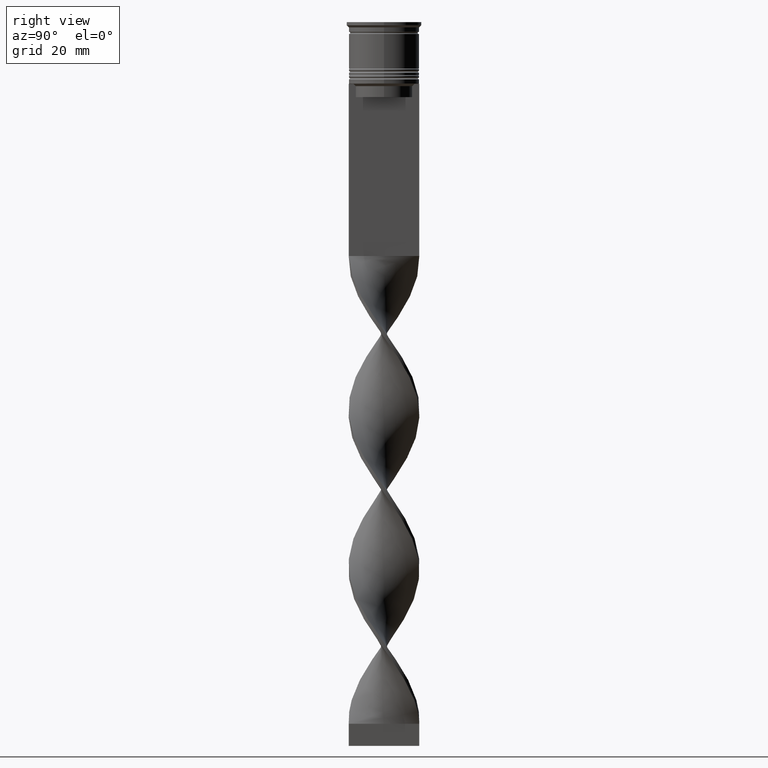
[diagram: clean part render]
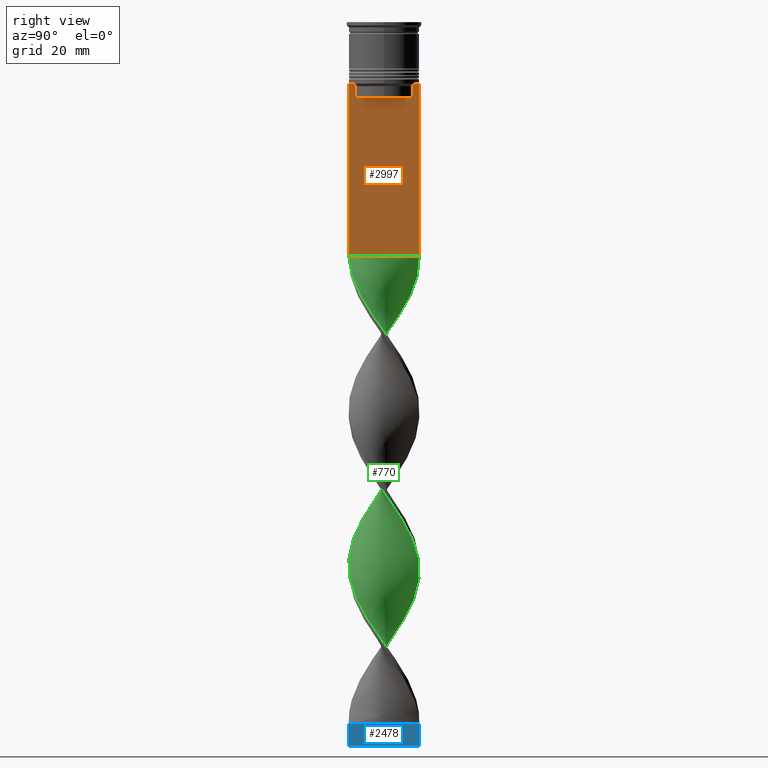
[diagram: same view with three faces highlighted in distinct colors, each labeled with its STEP entity id]
A machine part, right view with three faces highlighted in distinct colors.
Their STEP definitions:

[orange] entity #2997 — the highlighted planar face has unit normal (-1, 0, 0).
#14 = EDGE_CURVE ( 'NONE', #557, #58, #1973, .T. ) ;
#44 = VERTEX_POINT ( 'NONE', #2589 ) ;
#58 = VERTEX_POINT ( 'NONE', #646 ) ;
#73 = VERTEX_POINT ( 'NONE', #959 ) ;
#84 = VECTOR ( 'NONE', #784, 1000.000000000000000 ) ;
#130 = CARTESIAN_POINT ( 'NONE',  ( 0.5000000000000001110, 6.399999999999999467, -17.00000000000000000 ) ) ;
#134 = VERTEX_POINT ( 'NONE', #907 ) ;
#162 = CARTESIAN_POINT ( 'NONE',  ( 0.5000000000000001110, 7.999999999999996447, -14.00000000000000178 ) ) ;
#192 = LINE ( 'NONE', #1950, #892 ) ;
#210 = ORIENTED_EDGE ( 'NONE', *, *, #867, .T. ) ;
#214 = VECTOR ( 'NONE', #735, 1000.000000000000000 ) ;
#252 = DIRECTION ( 'NONE',  ( 0.000000000000000000, 0.000000000000000000, -1.000000000000000000 ) ) ;
#345 = CARTESIAN_POINT ( 'NONE',  ( 0.5000000000000001110, -6.380438856379708312, -14.50000000000000000 ) ) ;
#395 = CARTESIAN_POINT ( 'NONE',  ( 0.5000000000000001110, -6.380438856379708312, 0.000000000000000000 ) ) ;
#422 = LINE ( 'NONE', #130, #3164 ) ;
#461 = CARTESIAN_POINT ( 'NONE',  ( 0.5000000000000001110, 7.884161337770806632, -14.00000000000000178 ) ) ;
#551 = CARTESIAN_POINT ( 'NONE',  ( 0.5000000000000001110, -8.000000000000003553, -53.00000000000000000 ) ) ;
#555 = EDGE_CURVE ( 'NONE', #58, #44, #3537, .T. ) ;
#557 = VERTEX_POINT ( 'NONE', #461 ) ;
#577 = EDGE_CURVE ( 'NONE', #2911, #1686, #422, .T. ) ;
#592 = DIRECTION ( 'NONE',  ( 0.000000000000000000, -1.000000000000000000, 0.000000000000000000 ) ) ;
#598 = DIRECTION ( 'NONE',  ( 0.000000000000000000, 0.000000000000000000, -1.000000000000000000 ) ) ;
#646 = CARTESIAN_POINT ( 'NONE',  ( 0.5000000000000001110, 6.881860213634098500, -14.00000000000000178 ) ) ;
#735 = DIRECTION ( 'NONE',  ( 0.000000000000000000, 0.000000000000000000, -1.000000000000000000 ) ) ;
#751 = VECTOR ( 'NONE', #592, 1000.000000000000000 ) ;
#784 = DIRECTION ( 'NONE',  ( 0.000000000000000000, -1.000000000000000000, 0.000000000000000000 ) ) ;
#792 = DIRECTION ( 'NONE',  ( 0.000000000000000000, -1.000000000000000000, 0.000000000000000000 ) ) ;
#795 = LINE ( 'NONE', #551, #2498 ) ;
#812 = ORIENTED_EDGE ( 'NONE', *, *, #3705, .T. ) ;
#867 = EDGE_CURVE ( 'NONE', #73, #2704, #795, .T. ) ;
#890 = ORIENTED_EDGE ( 'NONE', *, *, #14, .T. ) ;
#892 = VECTOR ( 'NONE', #252, 1000.000000000000000 ) ;
#907 = CARTESIAN_POINT ( 'NONE',  ( 0.5000000000000001110, -8.000000000000003553, -14.00000000000000178 ) ) ;
#934 = ORIENTED_EDGE ( 'NONE', *, *, #2604, .T. ) ;
#935 = LINE ( 'NONE', #2056, #3174 ) ;
#959 = CARTESIAN_POINT ( 'NONE',  ( 0.5000000000000001110, -8.000000000000003553, -53.00000000000000000 ) ) ;
#1014 = B_SPLINE_CURVE_WITH_KNOTS ( 'NONE', 3,
 ( #345, #1999, #3165, #3514 ),
 .UNSPECIFIED., .F., .F.,
 ( 4, 4 ),
 ( 0.02996184199614751464, 0.03067452609193705923 ),
 .UNSPECIFIED. ) ;
#1022 = ORIENTED_EDGE ( 'NONE', *, *, #1926, .F. ) ;
#1120 = CARTESIAN_POINT ( 'NONE',  ( 0.5000000000000001110, -8.000000000000003553, -14.00000000000000178 ) ) ;
#1130 = VERTEX_POINT ( 'NONE', #2490 ) ;
#1160 = LINE ( 'NONE', #3308, #2327 ) ;
#1194 = VECTOR ( 'NONE', #1563, 1000.000000000000000 ) ;
#1226 = CARTESIAN_POINT ( 'NONE',  ( 0.5000000000000001110, -6.380438856379708312, -17.00000000000000000 ) ) ;
#1266 = ORIENTED_EDGE ( 'NONE', *, *, #1529, .T. ) ;
#1328 = CARTESIAN_POINT ( 'NONE',  ( 0.5000000000000001110, 6.380438856379708312, -17.00000000000000000 ) ) ;
#1329 = CARTESIAN_POINT ( 'NONE',  ( 0.5000000000000001110, 6.881860213634098500, -14.00000000000000178 ) ) ;
#1357 = ORIENTED_EDGE ( 'NONE', *, *, #2851, .T. ) ;
#1482 = EDGE_CURVE ( 'NONE', #44, #2911, #192, .T. ) ;
#1490 = CARTESIAN_POINT ( 'NONE',  ( 0.5000000000000001110, 7.999999999999996447, 2.031219541881394530 ) ) ;
#1529 = EDGE_CURVE ( 'NONE', #2229, #1130, #3709, .T. ) ;
#1563 = DIRECTION ( 'NONE',  ( -0.000000000000000000, -0.000000000000000000, 1.000000000000000000 ) ) ;
#1603 = DIRECTION ( 'NONE',  ( 0.000000000000000000, -1.000000000000000000, 0.000000000000000000 ) ) ;
#1613 = CARTESIAN_POINT ( 'NONE',  ( 0.5000000000000001110, -6.881860213634098500, -14.00000000000000178 ) ) ;
#1620 = CARTESIAN_POINT ( 'NONE',  ( 0.5000000000000001110, -6.380438856379708312, -14.50000000000000000 ) ) ;
#1638 = FACE_OUTER_BOUND ( 'NONE', #2395, .T. ) ;
#1645 = EDGE_CURVE ( 'NONE', #3159, #2229, #1014, .T. ) ;
#1686 = VERTEX_POINT ( 'NONE', #1226 ) ;
#1694 = DIRECTION ( 'NONE',  ( 0.000000000000000000, 1.000000000000000000, 0.000000000000000000 ) ) ;
#1740 = ORIENTED_EDGE ( 'NONE', *, *, #577, .T. ) ;
#1769 = LINE ( 'NONE', #1490, #3483 ) ;
#1842 = LINE ( 'NONE', #395, #1194 ) ;
#1926 = EDGE_CURVE ( 'NONE', #2160, #2704, #1769, .T. ) ;
#1950 = CARTESIAN_POINT ( 'NONE',  ( 0.5000000000000001110, 6.380438856379708312, 0.000000000000000000 ) ) ;
#1973 = LINE ( 'NONE', #3118, #751 ) ;
#1999 = CARTESIAN_POINT ( 'NONE',  ( 0.5000000000000001110, -6.547597841511247019, -14.33335192438652150 ) ) ;
#2056 = CARTESIAN_POINT ( 'NONE',  ( 0.5000000000000001110, -8.000000000000003553, -14.00000000000000178 ) ) ;
#2142 = LINE ( 'NONE', #3313, #214 ) ;
#2160 = VERTEX_POINT ( 'NONE', #162 ) ;
#2229 = VERTEX_POINT ( 'NONE', #1613 ) ;
#2236 = ORIENTED_EDGE ( 'NONE', *, *, #2251, .T. ) ;
#2251 = EDGE_CURVE ( 'NONE', #1686, #3159, #1842, .T. ) ;
#2327 = VECTOR ( 'NONE', #792, 1000.000000000000000 ) ;
#2395 = EDGE_LOOP ( 'NONE', ( #890, #2635, #3632, #1740, #2236, #2908, #1266, #934, #1357, #210, #1022, #812 ) ) ;
#2477 = PLANE ( 'NONE',  #2990 ) ;
#2490 = CARTESIAN_POINT ( 'NONE',  ( 0.5000000000000001110, -7.884161337770806632, -14.00000000000000178 ) ) ;
#2498 = VECTOR ( 'NONE', #1694, 1000.000000000000000 ) ;
#2517 = CARTESIAN_POINT ( 'NONE',  ( 0.5000000000000001110, -8.000000000000003553, 2.031219541881394530 ) ) ;
#2589 = CARTESIAN_POINT ( 'NONE',  ( 0.5000000000000001110, 6.380438856379708312, -14.50000000000000000 ) ) ;
#2604 = EDGE_CURVE ( 'NONE', #1130, #134, #935, .T. ) ;
#2616 = DIRECTION ( 'NONE',  ( 0.000000000000000000, -1.000000000000000000, 0.000000000000000000 ) ) ;
#2635 = ORIENTED_EDGE ( 'NONE', *, *, #555, .T. ) ;
#2704 = VERTEX_POINT ( 'NONE', #2860 ) ;
#2851 = EDGE_CURVE ( 'NONE', #134, #73, #2142, .T. ) ;
#2860 = CARTESIAN_POINT ( 'NONE',  ( 0.5000000000000001110, 7.999999999999996447, -53.00000000000000000 ) ) ;
#2908 = ORIENTED_EDGE ( 'NONE', *, *, #1645, .T. ) ;
#2911 = VERTEX_POINT ( 'NONE', #1328 ) ;
#2990 = AXIS2_PLACEMENT_3D ( 'NONE', #2517, #3123, #3643 ) ;
#2997 = ADVANCED_FACE ( 'NONE', ( #1638 ), #2477, .F. ) ;
#3011 = CARTESIAN_POINT ( 'NONE',  ( 0.5000000000000001110, 6.547597841304911626, -14.33335192459222718 ) ) ;
#3027 = CARTESIAN_POINT ( 'NONE',  ( 0.5000000000000001110, 6.380438856379708312, -14.50000000000000000 ) ) ;
#3118 = CARTESIAN_POINT ( 'NONE',  ( 0.5000000000000001110, -8.000000000000003553, -14.00000000000000178 ) ) ;
#3123 = DIRECTION ( 'NONE',  ( -1.000000000000000000, 0.000000000000000000, 0.000000000000000000 ) ) ;
#3159 = VERTEX_POINT ( 'NONE', #1620 ) ;
#3164 = VECTOR ( 'NONE', #1603, 1000.000000000000000 ) ;
#3165 = CARTESIAN_POINT ( 'NONE',  ( 0.5000000000000001110, -6.714736947305993908, -14.16668390685738821 ) ) ;
#3174 = VECTOR ( 'NONE', #2616, 1000.000000000000000 ) ;
#3308 = CARTESIAN_POINT ( 'NONE',  ( 0.5000000000000001110, -8.000000000000003553, -14.00000000000000178 ) ) ;
#3313 = CARTESIAN_POINT ( 'NONE',  ( 0.5000000000000001110, -8.000000000000003553, 2.031219541881394530 ) ) ;
#3483 = VECTOR ( 'NONE', #598, 1000.000000000000000 ) ;
#3514 = CARTESIAN_POINT ( 'NONE',  ( 0.5000000000000001110, -6.881860213634098500, -14.00000000000000178 ) ) ;
#3537 = B_SPLINE_CURVE_WITH_KNOTS ( 'NONE', 3,
 ( #1329, #3626, #3011, #3027 ),
 .UNSPECIFIED., .F., .F.,
 ( 4, 4 ),
 ( 0.01172465562756038263, 0.01243276816391822651 ),
 .UNSPECIFIED. ) ;
#3626 = CARTESIAN_POINT ( 'NONE',  ( 0.5000000000000001110, 6.714736947114692711, -14.16668390704818847 ) ) ;
#3632 = ORIENTED_EDGE ( 'NONE', *, *, #1482, .T. ) ;
#3643 = DIRECTION ( 'NONE',  ( 0.000000000000000000, 0.000000000000000000, 1.000000000000000000 ) ) ;
#3705 = EDGE_CURVE ( 'NONE', #2160, #557, #1160, .T. ) ;
#3709 = LINE ( 'NONE', #1120, #84 ) ;

[blue] entity #2478 — the highlighted planar face has unit normal (-1, 0, 0).
#91 = CARTESIAN_POINT ( 'NONE',  ( 0.5000000000000002220, 2.666666666666670515, -159.0000000000000000 ) ) ;
#108 = CARTESIAN_POINT ( 'NONE',  ( 0.4999999999999989453, -7.999999999999996447, -159.0000000000000000 ) ) ;
#120 = LINE ( 'NONE', #1317, #1071 ) ;
#147 = CARTESIAN_POINT ( 'NONE',  ( 0.5000000000000008882, 8.000000000000003553, -164.0000000000000000 ) ) ;
#160 = CARTESIAN_POINT ( 'NONE',  ( 0.4999999999999989453, -7.999999999999996447, -164.0000000000000000 ) ) ;
#301 = CARTESIAN_POINT ( 'NONE',  ( 0.5000000000000008882, 8.000000000000003553, -159.0000000000000000 ) ) ;
#340 = EDGE_CURVE ( 'NONE', #2500, #2428, #788, .T. ) ;
#493 = DIRECTION ( 'NONE',  ( -1.219727444046192488E-16, -1.000000000000000000, 0.000000000000000000 ) ) ;
#525 = ORIENTED_EDGE ( 'NONE', *, *, #340, .F. ) ;
#526 = CARTESIAN_POINT ( 'NONE',  ( 0.4999999999999989453, -7.999999999999996447, -159.0000000000000000 ) ) ;
#788 = LINE ( 'NONE', #160, #1005 ) ;
#830 = VECTOR ( 'NONE', #493, 1000.000000000000000 ) ;
#853 = EDGE_CURVE ( 'NONE', #3068, #2500, #1096, .T. ) ;
#1005 = VECTOR ( 'NONE', #1877, 1000.000000000000000 ) ;
#1032 = ORIENTED_EDGE ( 'NONE', *, *, #853, .F. ) ;
#1071 = VECTOR ( 'NONE', #3003, 1000.000000000000000 ) ;
#1096 = LINE ( 'NONE', #3140, #830 ) ;
#1317 = CARTESIAN_POINT ( 'NONE',  ( 0.5000000000000008882, 8.000000000000003553, -164.0000000000000000 ) ) ;
#1367 = DIRECTION ( 'NONE',  ( -1.000000000000000000, 1.219727444046192488E-16, 0.000000000000000000 ) ) ;
#1855 = AXIS2_PLACEMENT_3D ( 'NONE', #3711, #1367, #3361 ) ;
#1877 = DIRECTION ( 'NONE',  ( -0.000000000000000000, -0.000000000000000000, 1.000000000000000000 ) ) ;
#1951 = VERTEX_POINT ( 'NONE', #301 ) ;
#2001 = CARTESIAN_POINT ( 'NONE',  ( 0.4999999999999989453, -7.999999999999996447, -164.0000000000000000 ) ) ;
#2106 = ORIENTED_EDGE ( 'NONE', *, *, #2116, .T. ) ;
#2116 = EDGE_CURVE ( 'NONE', #3068, #1951, #120, .T. ) ;
#2191 = EDGE_LOOP ( 'NONE', ( #3451, #525, #1032, #2106 ) ) ;
#2277 = PLANE ( 'NONE',  #1855 ) ;
#2328 = B_SPLINE_CURVE_WITH_KNOTS ( 'NONE', 3,
 ( #3252, #91, #3004, #108 ),
 .UNSPECIFIED., .F., .F.,
 ( 4, 4 ),
 ( 0.000000000000000000, 1.000000000000000000 ),
 .UNSPECIFIED. ) ;
#2428 = VERTEX_POINT ( 'NONE', #526 ) ;
#2478 = ADVANCED_FACE ( 'NONE', ( #2768 ), #2277, .F. ) ;
#2500 = VERTEX_POINT ( 'NONE', #2001 ) ;
#2768 = FACE_OUTER_BOUND ( 'NONE', #2191, .T. ) ;
#3003 = DIRECTION ( 'NONE',  ( -0.000000000000000000, -0.000000000000000000, 1.000000000000000000 ) ) ;
#3004 = CARTESIAN_POINT ( 'NONE',  ( 0.4999999999999995559, -2.666666666666663410, -159.0000000000000000 ) ) ;
#3068 = VERTEX_POINT ( 'NONE', #147 ) ;
#3140 = CARTESIAN_POINT ( 'NONE',  ( 0.5000000000000008882, 8.000000000000003553, -164.0000000000000000 ) ) ;
#3252 = CARTESIAN_POINT ( 'NONE',  ( 0.5000000000000008882, 8.000000000000003553, -159.0000000000000000 ) ) ;
#3361 = DIRECTION ( 'NONE',  ( -1.219727444046192488E-16, -1.000000000000000000, 0.000000000000000000 ) ) ;
#3427 = EDGE_CURVE ( 'NONE', #1951, #2428, #2328, .T. ) ;
#3451 = ORIENTED_EDGE ( 'NONE', *, *, #3427, .T. ) ;
#3711 = CARTESIAN_POINT ( 'NONE',  ( 0.5000000000000008882, 8.000000000000003553, -164.0000000000000000 ) ) ;

[green] entity #770 — the highlighted face is a freeform B-spline surface patch.
#4 = CARTESIAN_POINT ( 'NONE',  ( 6.212274820320101476, 5.134920145359098242, -148.4000000000000057 ) ) ;
#5 = CARTESIAN_POINT ( 'NONE',  ( 6.803297758105513182, -4.321446859207498825, -63.60000000000000142 ) ) ;
#10 = CARTESIAN_POINT ( 'NONE',  ( -7.144131640230917846, 3.731105258425341020, -65.95555555555556282 ) ) ;
#24 = CARTESIAN_POINT ( 'NONE',  ( 7.763755626116592090, 2.164223167868970066, -73.02222222222221149 ) ) ;
#47 = CARTESIAN_POINT ( 'NONE',  ( 7.144131640230924951, 3.731105258425341464, -146.0444444444443945 ) ) ;
#48 = CARTESIAN_POINT ( 'NONE',  ( 5.610593300639729719, 5.724617263609562912, -78.91111111111111143 ) ) ;
#56 = CARTESIAN_POINT ( 'NONE',  ( 5.106790515527261043, -6.178243328853345595, -60.06666666666666288 ) ) ;
#59 = CARTESIAN_POINT ( 'NONE',  ( -7.763755626116593866, -2.164223167868965625, -108.3555555555555543 ) ) ;
#63 = CARTESIAN_POINT ( 'NONE',  ( 7.553108702445512357, -2.812527737008067241, -136.6222222222222342 ) ) ;
#71 = CARTESIAN_POINT ( 'NONE',  ( 6.279723906998584404, -4.981472438132170666, -62.42222222222221717 ) ) ;
#73 = VERTEX_POINT ( 'NONE', #959 ) ;
#75 = CARTESIAN_POINT ( 'NONE',  ( -7.553108702445507028, -2.812527737008061912, -146.0444444444443945 ) ) ;
#77 = CARTESIAN_POINT ( 'NONE',  ( 6.279723906998584404, -4.981472438132170666, -133.0888888888889028 ) ) ;
#79 = CARTESIAN_POINT ( 'NONE',  ( 2.007605570224929803, -7.805721184925809020, -91.86666666666666003 ) ) ;
#85 = CARTESIAN_POINT ( 'NONE',  ( -8.044066236508127687, 0.5027541397817588686, -141.3333333333333428 ) ) ;
#96 = CARTESIAN_POINT ( 'NONE',  ( 6.803297758105513182, -4.321446859207498825, -134.2666666666666515 ) ) ;
#100 = CARTESIAN_POINT ( 'NONE',  ( -7.553108702445506140, -2.812527737008062356, -75.37777777777777999 ) ) ;
#112 = CARTESIAN_POINT ( 'NONE',  ( 4.297773521152314480, 6.766028581145818066, -151.9333333333333371 ) ) ;
#116 = CARTESIAN_POINT ( 'NONE',  ( 1.174219726175168788, -7.929136651279321768, -90.68888888888888289 ) ) ;
#122 = CARTESIAN_POINT ( 'NONE',  ( 6.803297758105512294, -4.321446859207498825, -63.60000000000000853 ) ) ;
#132 = CARTESIAN_POINT ( 'NONE',  ( -5.756150055891655626, -5.641498017056837178, -80.08888888888888857 ) ) ;
#145 = CARTESIAN_POINT ( 'NONE',  ( -8.044066236508127687, 0.5027541397817588686, -141.3333333333333428 ) ) ;
#154 = CARTESIAN_POINT ( 'NONE',  ( 0.5000000000000001110, 7.999999999999996447, -123.6666666666666714 ) ) ;
#156 = CARTESIAN_POINT ( 'NONE',  ( -6.212274820320102364, -5.134920145359098242, -113.0666666666666487 ) ) ;
#157 = CARTESIAN_POINT ( 'NONE',  ( -7.903910931312356780, 1.333488653825365855, -69.48888888888889426 ) ) ;
#174 = CARTESIAN_POINT ( 'NONE',  ( -7.903910931312356780, 1.333488653825365855, -69.48888888888889426 ) ) ;
#179 = CARTESIAN_POINT ( 'NONE',  ( 7.178203230275508773, 3.566987298107773263, -111.8888888888888999 ) ) ;
#191 = CARTESIAN_POINT ( 'NONE',  ( -3.586635261345274994, -7.217742780431604110, -117.7777777777777999 ) ) ;
#233 = CARTESIAN_POINT ( 'NONE',  ( -1.340833882125413545, -7.947447882367156602, -157.8222222222221944 ) ) ;
#235 = CARTESIAN_POINT ( 'NONE',  ( -4.457430975162861131, 6.714988640649850460, -94.22222222222221433 ) ) ;
#250 = CARTESIAN_POINT ( 'NONE',  ( 7.763755626116592090, 2.164223167868970066, -143.6888888888888971 ) ) ;
#253 = EDGE_LOOP ( 'NONE', ( #2055, #3511, #968, #584 ) ) ;
#288 = CARTESIAN_POINT ( 'NONE',  ( -5.756150055891657402, 5.641498017056845171, -96.57777777777776862 ) ) ;
#295 = CARTESIAN_POINT ( 'NONE',  ( -3.586635261345268333, 7.217742780431601446, -58.88888888888888573 ) ) ;
#305 = CARTESIAN_POINT ( 'NONE',  ( 7.762960627548705084, -1.996607696852003677, -67.13333333333333997 ) ) ;
#323 = CARTESIAN_POINT ( 'NONE',  ( 8.044066236508134793, 0.5027541397817577584, -70.66666666666667140 ) ) ;
#338 = CARTESIAN_POINT ( 'NONE',  ( 2.963900771692544289, -7.495002038555971247, -56.53333333333331723 ) ) ;
#342 = CARTESIAN_POINT ( 'NONE',  ( 7.972812552651896922, -1.180687656695942334, -138.9777777777777885 ) ) ;
#354 = CARTESIAN_POINT ( 'NONE',  ( 7.178203230275512325, -3.566987298107783477, -135.4444444444444571 ) ) ;
#362 = CARTESIAN_POINT ( 'NONE',  ( -6.803297758105512294, 4.321446859207499713, -98.93333333333332291 ) ) ;
#367 = CARTESIAN_POINT ( 'NONE',  ( 1.340833882125412213, -7.947447882367162819, -124.8444444444444343 ) ) ;
#368 = CARTESIAN_POINT ( 'NONE',  ( -7.144131640230917846, 3.731105258425341020, -136.6222222222222342 ) ) ;
#369 = CARTESIAN_POINT ( 'NONE',  ( 5.610593300639729719, 5.724617263609562912, -78.91111111111111143 ) ) ;
#379 = CARTESIAN_POINT ( 'NONE',  ( -7.144131640230925839, -3.731105258425339688, -110.7111111111111086 ) ) ;
#381 = CARTESIAN_POINT ( 'NONE',  ( -5.756150055891655626, -5.641498017056837178, -80.08888888888890278 ) ) ;
#388 = CARTESIAN_POINT ( 'NONE',  ( -4.457430975162862019, -6.714988640649840690, -82.44444444444444287 ) ) ;
#400 = CARTESIAN_POINT ( 'NONE',  ( 6.678203230275513214, 4.433012701892219631, -147.2222222222222285 ) ) ;
#402 = CARTESIAN_POINT ( 'NONE',  ( -1.340833882125413545, -7.947447882367156602, -87.15555555555553724 ) ) ;
#405 = CARTESIAN_POINT ( 'NONE',  ( -7.453943633173751415, 2.947664213147155543, -137.8000000000000114 ) ) ;
#416 = CARTESIAN_POINT ( 'NONE',  ( -7.762960627548699755, -1.996607696852000569, -144.8666666666666742 ) ) ;
#418 =( BOUNDED_CURVE ( )  B_SPLINE_CURVE ( 2, ( #2290, #2910, #3187, #636, #3149, #2893, #3457, #2305, #604, #5, #1772, #561, #305, #2614, #933, #323, #2638, #24, #1460, #2857, #1173, #876, #48, #2068, #2935, #1195, #3217, #1793, #1739, #2329, #3500, #3440, #2560, #2880, #3727, #1139, #1445, #288, #2275, #362, #2407, #990, #2388, #1548, #1568, #1871, #2139, #3606, #2689, #379, #1531, #2991, #2118, #949, #3569, #1247, #660, #3277, #419, #1303, #2667, #1886, #3553, #3296, #2442, #2706, #2970, #716, #77, #96, #1026, #63, #3024, #972, #1270, #694, #1850, #2102, #3008, #3260, #400, #677, #733, #1832, #112, #1286, #2424, #3583, #1006, #1583, #2722 ),
 .UNSPECIFIED., .F., .T. ) 
 B_SPLINE_CURVE_WITH_KNOTS ( ( 3, 2, 2, 2, 2, 2, 2, 2, 2, 2, 2, 2, 2, 2, 2, 2, 2, 2, 2, 2, 2, 2, 2, 2, 2, 2, 2, 2, 2, 2, 2, 2, 2, 2, 2, 2, 2, 2, 2, 2, 2, 2, 2, 2, 2, 3 ),
 ( 0.000000000000000000, 0.01666666666666666644, 0.03333333333333333287, 0.05000000000000000971, 0.06666666666666666574, 0.08333333333333332871, 0.1000000000000000194, 0.1166666666666666546, 0.1333333333333333315, 0.1499999999999999944, 0.1666666666666666574, 0.1833333333333333204, 0.2000000000000000389, 0.2166666666666666741, 0.2333333333333333093, 0.2500000000000000000, 0.2666666666666666630, 0.2833333333333333259, 0.2999999999999999889, 0.3166666666666666519, 0.3333333333333333148, 0.3499999999999999223, 0.3666666666666666408, 0.3833333333333333592, 0.4000000000000000777, 0.4166666666666666852, 0.4333333333333333481, 0.4500000000000000111, 0.4666666666666666186, 0.4833333333333333370, 0.5000000000000000000, 0.5166666666666667185, 0.5333333333333333259, 0.5500000000000000444, 0.5666666666666666519, 0.5833333333333333703, 0.5999999999999999778, 0.6166666666666666963, 0.6333333333333333037, 0.6500000000000000222, 0.6666666666666666297, 0.6833333333333332371, 0.6999999999999998446, 0.7166666666666666741, 0.7333333333333332815, 0.7500000000000000000 ),
 .UNSPECIFIED. ) 
 CURVE ( )  GEOMETRIC_REPRESENTATION_ITEM ( )  RATIONAL_B_SPLINE_CURVE ( ( 1.000000000000000000, 0.9945218953682732899, 1.000000000000000000, 0.9945218953682732899, 1.000000000000000000, 0.9945218953682732899, 1.000000000000000000, 0.9945218953682732899, 1.000000000000000000, 0.9945218953682732899, 1.000000000000000000, 0.9945218953682732899, 1.000000000000000000, 0.9945218953682732899, 1.000000000000000000, 0.9945218953682732899, 1.000000000000000000, 0.9945218953682732899, 1.000000000000000000, 0.9945218953682732899, 1.000000000000000000, 0.9945218953682732899, 1.000000000000000000, 0.9945218953682732899, 1.000000000000000000, 0.9945218953682732899, 1.000000000000000000, 0.9945218953682732899, 1.000000000000000000, 0.9945218953682732899, 1.000000000000000000, 0.9945218953682732899, 1.000000000000000000, 0.9945218953682732899, 1.000000000000000000, 0.9945218953682732899, 1.000000000000000000, 0.9945218953682732899, 1.000000000000000000, 0.9945218953682732899, 1.000000000000000000, 0.9945218953682732899, 1.000000000000000000, 0.9945218953682732899, 1.000000000000000000, 0.9945218953682732899, 1.000000000000000000, 0.9945218953682732899, 1.000000000000000000, 0.9945218953682732899, 1.000000000000000000, 0.9945218953682732899, 1.000000000000000000, 0.9945218953682732899, 1.000000000000000000, 0.9945218953682732899, 1.000000000000000000, 0.9945218953682732899, 1.000000000000000000, 0.9945218953682732899, 1.000000000000000000, 0.9945218953682732899, 1.000000000000000000, 0.9945218953682732899, 1.000000000000000000, 0.9945218953682732899, 1.000000000000000000, 0.9945218953682732899, 1.000000000000000000, 0.9945218953682732899, 1.000000000000000000, 0.9945218953682732899, 1.000000000000000000, 0.9945218953682732899, 1.000000000000000000, 0.9945218953682732899, 1.000000000000000000, 0.9945218953682732899, 1.000000000000000000, 0.9945218953682732899, 1.000000000000000000, 0.9945218953682732899, 1.000000000000000000, 0.9945218953682732899, 1.000000000000000000, 0.9945218953682732899, 1.000000000000000000, 0.9945218953682732899, 1.000000000000000000, 0.9945218953682732899, 1.000000000000000000 ) ) 
 REPRESENTATION_ITEM ( '' )  );
#419 = CARTESIAN_POINT ( 'NONE',  ( -1.174219726175176559, -7.929136651279327097, -121.3111111111111171 ) ) ;
#423 = CARTESIAN_POINT ( 'NONE',  ( 7.178203230275508773, 3.566987298107773263, -111.8888888888888999 ) ) ;
#432 = CARTESIAN_POINT ( 'NONE',  ( 7.553108702445513245, -2.812527737008067685, -65.95555555555556282 ) ) ;
#435 = CARTESIAN_POINT ( 'NONE',  ( -7.972812552651889817, -1.180687656695938337, -143.6888888888888971 ) ) ;
#440 = CARTESIAN_POINT ( 'NONE',  ( 3.710665873427706707, 7.104995339602901083, -118.9555555555555628 ) ) ;
#467 = CARTESIAN_POINT ( 'NONE',  ( 4.457430975162862907, -6.714988640649848683, -129.5555555555555429 ) ) ;
#524 = CARTESIAN_POINT ( 'NONE',  ( -6.279723906998582628, -4.981472438132164449, -149.5777777777777828 ) ) ;
#530 = CARTESIAN_POINT ( 'NONE',  ( 3.586635261345274106, 7.217742780431604999, -82.44444444444444287 ) ) ;
#535 = CARTESIAN_POINT ( 'NONE',  ( 1.174219726175175671, 7.929136651279327097, -156.6444444444444457 ) ) ;
#537 = CARTESIAN_POINT ( 'NONE',  ( 7.553108702445507916, 2.812527737008058804, -110.7111111111110944 ) ) ;
#542 = CARTESIAN_POINT ( 'NONE',  ( 7.453943633173759409, 2.947664213147156431, -144.8666666666666742 ) ) ;
#551 = CARTESIAN_POINT ( 'NONE',  ( 0.5000000000000001110, -8.000000000000003553, -53.00000000000000000 ) ) ;
#561 = CARTESIAN_POINT ( 'NONE',  ( 7.553108702445512357, -2.812527737008067241, -65.95555555555556282 ) ) ;
#566 = CARTESIAN_POINT ( 'NONE',  ( 0.5000000000000001110, 7.999999999999996447, -53.00000000000000000 ) ) ;
#584 = ORIENTED_EDGE ( 'NONE', *, *, #1419, .F. ) ;
#604 = CARTESIAN_POINT ( 'NONE',  ( 6.279723906998584404, -4.981472438132170666, -62.42222222222221717 ) ) ;
#621 = CARTESIAN_POINT ( 'NONE',  ( 0.3408338821254078277, -8.052552117632837181, -89.51111111111111995 ) ) ;
#630 = CARTESIAN_POINT ( 'NONE',  ( 0.5000000000000001110, -8.000000000000003553, -53.00000000000000000 ) ) ;
#636 = CARTESIAN_POINT ( 'NONE',  ( 2.963900771692544289, -7.495002038555971247, -56.53333333333332433 ) ) ;
#642 = CARTESIAN_POINT ( 'NONE',  ( 5.008911780959355298, 6.314314381860029357, -150.7555555555555600 ) ) ;
#644 = CARTESIAN_POINT ( 'NONE',  ( 7.972812552651896922, -1.180687656695942334, -68.31111111111111711 ) ) ;
#658 = CARTESIAN_POINT ( 'NONE',  ( -7.903910931312356780, 1.333488653825365855, -140.1555555555555657 ) ) ;
#660 = CARTESIAN_POINT ( 'NONE',  ( -2.797120415785108172, -7.511731982678708341, -118.9555555555555628 ) ) ;
#662 = CARTESIAN_POINT ( 'NONE',  ( -3.710665873427702710, -7.104995339602902860, -83.62222222222222001 ) ) ;
#665 = CARTESIAN_POINT ( 'NONE',  ( 6.803297758105507853, 4.321446859207492608, -113.0666666666666487 ) ) ;
#666 = CARTESIAN_POINT ( 'NONE',  ( -6.803297758105507853, -4.321446859207493496, -77.73333333333333428 ) ) ;
#669 = CARTESIAN_POINT ( 'NONE',  ( 2.152367326908981138, 7.721224960461560372, -121.3111111111111171 ) ) ;
#677 = CARTESIAN_POINT ( 'NONE',  ( 6.212274820320101476, 5.134920145359099131, -148.4000000000000057 ) ) ;
#679 = CARTESIAN_POINT ( 'NONE',  ( -0.5000000000000011102, -7.999999999999996447, -159.0000000000000000 ) ) ;
#682 = CARTESIAN_POINT ( 'NONE',  ( 7.144131640230915181, -3.731105258425345461, -101.2888888888888914 ) ) ;
#694 = CARTESIAN_POINT ( 'NONE',  ( 8.044066236508134793, 0.5027541397817577584, -141.3333333333333428 ) ) ;
#699 = CARTESIAN_POINT ( 'NONE',  ( -7.762960627548699755, -1.996607696852000569, -74.20000000000000284 ) ) ;
#708 = CARTESIAN_POINT ( 'NONE',  ( 7.178203230275512325, -3.566987298107783477, -64.77777777777778567 ) ) ;
#711 = CARTESIAN_POINT ( 'NONE',  ( -1.340833882125409104, 7.947447882367164596, -89.51111111111111995 ) ) ;
#713 = CARTESIAN_POINT ( 'NONE',  ( -7.453943633173751415, 2.947664213147155543, -137.8000000000000114 ) ) ;
#716 = CARTESIAN_POINT ( 'NONE',  ( 5.756150055891658290, -5.641498017056844283, -131.9111111111111256 ) ) ;
#721 = CARTESIAN_POINT ( 'NONE',  ( 6.803297758105508741, 4.321446859207492608, -113.0666666666666629 ) ) ;
#730 = CARTESIAN_POINT ( 'NONE',  ( -0.4999999999999991673, 8.000000000000003553, -88.33333333333332860 ) ) ;
#731 = CARTESIAN_POINT ( 'NONE',  ( -6.212274820320096147, 5.134920145359095578, -134.2666666666666231 ) ) ;
#733 = CARTESIAN_POINT ( 'NONE',  ( 5.610593300639729719, 5.724617263609562912, -149.5777777777777828 ) ) ;
#737 = CARTESIAN_POINT ( 'NONE',  ( -6.678203230275506108, 4.433012701892218743, -64.77777777777778567 ) ) ;
#738 = CARTESIAN_POINT ( 'NONE',  ( 7.972812552651892481, 1.180687656695933230, -108.3555555555555543 ) ) ;
#742 = CARTESIAN_POINT ( 'NONE',  ( -1.340833882125413545, -7.947447882367156602, -157.8222222222221660 ) ) ;
#756 = CARTESIAN_POINT ( 'NONE',  ( -0.3408338821254111584, 8.052552117632835404, -124.8444444444444343 ) ) ;
#770 = ADVANCED_FACE ( 'NONE', ( #1628 ), #3397, .T. ) ;
#783 = CARTESIAN_POINT ( 'NONE',  ( -5.610593300639721726, 5.724617263609561135, -62.42222222222221717 ) ) ;
#795 = LINE ( 'NONE', #551, #2498 ) ;
#805 = CARTESIAN_POINT ( 'NONE',  ( -2.007605570224930691, 7.805721184925808132, -56.53333333333331723 ) ) ;
#816 = CARTESIAN_POINT ( 'NONE',  ( 7.903910931312356780, -1.333488653825370518, -104.8222222222222229 ) ) ;
#837 = CARTESIAN_POINT ( 'NONE',  ( 5.610593300639729719, 5.724617263609562912, -149.5777777777777828 ) ) ;
#844 = CARTESIAN_POINT ( 'NONE',  ( -7.762960627548699755, -1.996607696852000569, -74.20000000000000284 ) ) ;
#867 = EDGE_CURVE ( 'NONE', #73, #2704, #795, .T. ) ;
#876 = CARTESIAN_POINT ( 'NONE',  ( 6.212274820320101476, 5.134920145359099131, -77.73333333333333428 ) ) ;
#878 = CARTESIAN_POINT ( 'NONE',  ( -6.279723906998582628, -4.981472438132164449, -78.91111111111111143 ) ) ;
#918 = CARTESIAN_POINT ( 'NONE',  ( 1.174219726175168788, -7.929136651279321768, -90.68888888888888289 ) ) ;
#930 = CARTESIAN_POINT ( 'NONE',  ( -7.178203230275511437, 3.566987298107786142, -100.1111111111111143 ) ) ;
#932 = CARTESIAN_POINT ( 'NONE',  ( 7.553108702445513245, -2.812527737008067685, -136.6222222222222342 ) ) ;
#933 = CARTESIAN_POINT ( 'NONE',  ( 8.008439394580017634, -0.3389667584570930092, -69.48888888888889426 ) ) ;
#949 = CARTESIAN_POINT ( 'NONE',  ( -5.008911780959359739, -6.314314381860026693, -115.4222222222222314 ) ) ;
#954 = CARTESIAN_POINT ( 'NONE',  ( 3.586635261345274106, 7.217742780431604999, -153.1111111111110858 ) ) ;
#956 = CARTESIAN_POINT ( 'NONE',  ( -5.008911780959349080, 6.314314381860025804, -131.9111111111111256 ) ) ;
#959 = CARTESIAN_POINT ( 'NONE',  ( 0.5000000000000001110, -8.000000000000003553, -53.00000000000000000 ) ) ;
#968 = ORIENTED_EDGE ( 'NONE', *, *, #2812, .F. ) ;
#972 = CARTESIAN_POINT ( 'NONE',  ( 7.972812552651897811, -1.180687656695942112, -138.9777777777777885 ) ) ;
#976 = CARTESIAN_POINT ( 'NONE',  ( -7.763755626116584985, 2.164223167868970954, -68.31111111111111711 ) ) ;
#978 = CARTESIAN_POINT ( 'NONE',  ( 5.008911780959355298, 6.314314381860029357, -80.08888888888890278 ) ) ;
#989 = CARTESIAN_POINT ( 'NONE',  ( 6.678203230275505220, -4.433012701892221408, -100.1111111111111143 ) ) ;
#990 = CARTESIAN_POINT ( 'NONE',  ( -7.553108702445509692, 2.812527737008071682, -101.2888888888888914 ) ) ;
#992 = CARTESIAN_POINT ( 'NONE',  ( -0.4999999999999991673, 8.000000000000003553, -159.0000000000000000 ) ) ;
#994 = CARTESIAN_POINT ( 'NONE',  ( 8.044066236508127687, -0.5027541397817598678, -106.0000000000000000 ) ) ;
#1006 = CARTESIAN_POINT ( 'NONE',  ( 1.174219726175175671, 7.929136651279327097, -156.6444444444444457 ) ) ;
#1011 = CARTESIAN_POINT ( 'NONE',  ( -4.297773521152309151, 6.766028581145814513, -60.06666666666666288 ) ) ;
#1012 = CARTESIAN_POINT ( 'NONE',  ( 7.762960627548699755, 1.996607696851999680, -109.5333333333333456 ) ) ;
#1026 = CARTESIAN_POINT ( 'NONE',  ( 7.178203230275512325, -3.566987298107783477, -135.4444444444444571 ) ) ;
#1031 = CARTESIAN_POINT ( 'NONE',  ( 4.457430975162862907, 6.714988640649839802, -117.7777777777777857 ) ) ;
#1062 = CARTESIAN_POINT ( 'NONE',  ( -1.174219726175170786, 7.929136651279321768, -55.35555555555555429 ) ) ;
#1077 = CARTESIAN_POINT ( 'NONE',  ( -2.963900771692543401, -7.495002038555964141, -155.4666666666666686 ) ) ;
#1086 = CARTESIAN_POINT ( 'NONE',  ( -2.007605570224930691, 7.805721184925808132, -127.2000000000000171 ) ) ;
#1087 = CARTESIAN_POINT ( 'NONE',  ( -1.174219726175176559, -7.929136651279327097, -121.3111111111111171 ) ) ;
#1105 = CARTESIAN_POINT ( 'NONE',  ( -4.457430975162862019, -6.714988640649840690, -153.1111111111111143 ) ) ;
#1139 = CARTESIAN_POINT ( 'NONE',  ( -4.457430975162861131, 6.714988640649849572, -94.22222222222221433 ) ) ;
#1141 = CARTESIAN_POINT ( 'NONE',  ( -7.178203230275506996, -3.566987298107776816, -76.55555555555555713 ) ) ;
#1173 = CARTESIAN_POINT ( 'NONE',  ( 6.678203230275513214, 4.433012701892219631, -76.55555555555555713 ) ) ;
#1178 = CARTESIAN_POINT ( 'NONE',  ( 4.297773521152314480, 6.766028581145818066, -151.9333333333333371 ) ) ;
#1179 = CARTESIAN_POINT ( 'NONE',  ( -7.453943633173751415, 2.947664213147155543, -67.13333333333333997 ) ) ;
#1195 = CARTESIAN_POINT ( 'NONE',  ( 3.586635261345274106, 7.217742780431604999, -82.44444444444444287 ) ) ;
#1212 = CARTESIAN_POINT ( 'NONE',  ( 6.678203230275513214, 4.433012701892219631, -147.2222222222222285 ) ) ;
#1228 = CARTESIAN_POINT ( 'NONE',  ( 4.297773521152308263, -6.766028581145814513, -95.40000000000000568 ) ) ;
#1244 = CARTESIAN_POINT ( 'NONE',  ( -7.178203230275506996, -3.566987298107776816, -147.2222222222222285 ) ) ;
#1247 = CARTESIAN_POINT ( 'NONE',  ( -3.586635261345274994, -7.217742780431604110, -117.7777777777777857 ) ) ;
#1252 = CARTESIAN_POINT ( 'NONE',  ( -8.008439394580010529, -0.3389667584570894565, -142.5111111111111200 ) ) ;
#1265 = CARTESIAN_POINT ( 'NONE',  ( 5.756150055891659179, -5.641498017056845171, -61.24444444444443292 ) ) ;
#1268 = CARTESIAN_POINT ( 'NONE',  ( -7.144131640230917846, 3.731105258425341020, -136.6222222222222342 ) ) ;
#1270 = CARTESIAN_POINT ( 'NONE',  ( 8.008439394580017634, -0.3389667584570930092, -140.1555555555555657 ) ) ;
#1274 = CARTESIAN_POINT ( 'NONE',  ( -3.710665873427702710, -7.104995339602902860, -83.62222222222222001 ) ) ;
#1276 = CARTESIAN_POINT ( 'NONE',  ( 7.903910931312363886, 1.333488653825363857, -71.84444444444444855 ) ) ;
#1286 = CARTESIAN_POINT ( 'NONE',  ( 3.586635261345274106, 7.217742780431604999, -153.1111111111111143 ) ) ;
#1290 = CARTESIAN_POINT ( 'NONE',  ( -1.340833882125413545, -7.947447882367156602, -87.15555555555553724 ) ) ;
#1296 = CARTESIAN_POINT ( 'NONE',  ( 5.008911780959347304, -6.314314381860026693, -96.57777777777775441 ) ) ;
#1303 = CARTESIAN_POINT ( 'NONE',  ( -0.3408338821254187634, -8.052552117632842510, -122.4888888888888800 ) ) ;
#1310 = CARTESIAN_POINT ( 'NONE',  ( 2.152367326908981138, 7.721224960461560372, -121.3111111111111171 ) ) ;
#1321 = CARTESIAN_POINT ( 'NONE',  ( -7.553108702445507028, -2.812527737008061912, -75.37777777777777999 ) ) ;
#1330 = CARTESIAN_POINT ( 'NONE',  ( -6.212274820320096147, 5.134920145359095578, -134.2666666666666515 ) ) ;
#1344 = CARTESIAN_POINT ( 'NONE',  ( -8.044066236508127687, 0.5027541397817588686, -70.66666666666667140 ) ) ;
#1366 = VERTEX_POINT ( 'NONE', #2072 ) ;
#1400 = CARTESIAN_POINT ( 'NONE',  ( 8.008439394580010529, 0.3389667584570867365, -107.1777777777777771 ) ) ;
#1409 = CARTESIAN_POINT ( 'NONE',  ( 8.008439394580017634, -0.3389667584570930092, -140.1555555555555657 ) ) ;
#1419 = EDGE_CURVE ( 'NONE', #2704, #1366, #2126, .T. ) ;
#1424 = CARTESIAN_POINT ( 'NONE',  ( -7.972812552651890705, -1.180687656695938115, -143.6888888888888971 ) ) ;
#1445 = CARTESIAN_POINT ( 'NONE',  ( -5.106790515527260155, 6.178243328853345595, -95.40000000000000568 ) ) ;
#1450 = CARTESIAN_POINT ( 'NONE',  ( -0.3408338821254111584, 8.052552117632835404, -54.17777777777777715 ) ) ;
#1455 = CARTESIAN_POINT ( 'NONE',  ( 3.710665873427703154, -7.104995339602909965, -57.71111111111110858 ) ) ;
#1460 = CARTESIAN_POINT ( 'NONE',  ( 7.453943633173759409, 2.947664213147156431, -74.20000000000000284 ) ) ;
#1463 = CARTESIAN_POINT ( 'NONE',  ( -6.212274820320096147, 5.134920145359095578, -63.60000000000000142 ) ) ;
#1502 = CARTESIAN_POINT ( 'NONE',  ( 6.212274820320101476, 5.134920145359098242, -77.73333333333333428 ) ) ;
#1505 = CARTESIAN_POINT ( 'NONE',  ( 1.340833882125418208, 7.947447882367156602, -122.4888888888888800 ) ) ;
#1513 = CARTESIAN_POINT ( 'NONE',  ( -7.903910931312363886, -1.333488653825361192, -107.1777777777777771 ) ) ;
#1527 = CARTESIAN_POINT ( 'NONE',  ( -3.710665873427702710, -7.104995339602902860, -154.2888888888888914 ) ) ;
#1531 = CARTESIAN_POINT ( 'NONE',  ( -6.678203230275515878, -4.433012701892216079, -111.8888888888888999 ) ) ;
#1536 = CARTESIAN_POINT ( 'NONE',  ( -7.763755626116584985, 2.164223167868970954, -138.9777777777777885 ) ) ;
#1547 = CARTESIAN_POINT ( 'NONE',  ( 7.144131640230915181, -3.731105258425345461, -101.2888888888888914 ) ) ;
#1548 = CARTESIAN_POINT ( 'NONE',  ( -7.972812552651897811, 1.180687656695944776, -103.6444444444444457 ) ) ;
#1551 = CARTESIAN_POINT ( 'NONE',  ( -5.106790515527258378, -6.178243328853339378, -81.26666666666666572 ) ) ;
#1556 = CARTESIAN_POINT ( 'NONE',  ( 2.963900771692544289, 7.495002038555965029, -120.1333333333333400 ) ) ;
#1561 = CARTESIAN_POINT ( 'NONE',  ( 2.963900771692544289, 7.495002038555964141, -120.1333333333333400 ) ) ;
#1568 = CARTESIAN_POINT ( 'NONE',  ( -8.008439394580017634, 0.3389667584570975056, -104.8222222222222229 ) ) ;
#1572 = CARTESIAN_POINT ( 'NONE',  ( 4.297773521152308263, -6.766028581145814513, -95.40000000000000568 ) ) ;
#1583 = CARTESIAN_POINT ( 'NONE',  ( 0.3408338821254142115, 8.052552117632842510, -157.8222222222221944 ) ) ;
#1587 = CARTESIAN_POINT ( 'NONE',  ( -0.3408338821254111584, 8.052552117632835404, -124.8444444444444343 ) ) ;
#1598 = CARTESIAN_POINT ( 'NONE',  ( -5.106790515527258378, -6.178243328853339378, -151.9333333333333371 ) ) ;
#1607 = CARTESIAN_POINT ( 'NONE',  ( 1.340833882125418208, 7.947447882367156602, -122.4888888888888800 ) ) ;
#1628 = FACE_OUTER_BOUND ( 'NONE', #253, .T. ) ;
#1629 = CARTESIAN_POINT ( 'NONE',  ( -0.5000000000000011102, -7.999999999999996447, -159.0000000000000000 ) ) ;
#1644 = CARTESIAN_POINT ( 'NONE',  ( -4.297773521152315368, -6.766028581145818066, -116.6000000000000085 ) ) ;
#1646 = EDGE_CURVE ( 'NONE', #73, #1994, #418, .T. ) ;
#1663 = CARTESIAN_POINT ( 'NONE',  ( -7.553108702445506140, -2.812527737008062356, -146.0444444444444230 ) ) ;
#1694 = DIRECTION ( 'NONE',  ( 0.000000000000000000, 1.000000000000000000, 0.000000000000000000 ) ) ;
#1723 = CARTESIAN_POINT ( 'NONE',  ( -2.007605570224930691, 7.805721184925808132, -56.53333333333332433 ) ) ;
#1739 = CARTESIAN_POINT ( 'NONE',  ( 1.174219726175175671, 7.929136651279327097, -85.97777777777777430 ) ) ;
#1753 = CARTESIAN_POINT ( 'NONE',  ( -7.972812552651896922, 1.180687656695944776, -103.6444444444444457 ) ) ;
#1772 = CARTESIAN_POINT ( 'NONE',  ( 7.178203230275512325, -3.566987298107783477, -64.77777777777778567 ) ) ;
#1789 = CARTESIAN_POINT ( 'NONE',  ( -8.008439394580017634, 0.3389667584570975056, -104.8222222222222229 ) ) ;
#1793 = CARTESIAN_POINT ( 'NONE',  ( 2.007605570224934244, 7.805721184925815237, -84.79999999999998295 ) ) ;
#1810 = CARTESIAN_POINT ( 'NONE',  ( -5.756150055891657402, 5.641498017056846059, -96.57777777777775441 ) ) ;
#1812 = CARTESIAN_POINT ( 'NONE',  ( -4.457430975162862019, -6.714988640649840690, -153.1111111111110858 ) ) ;
#1819 = CARTESIAN_POINT ( 'NONE',  ( 6.279723906998583516, 4.981472438132163560, -114.2444444444444542 ) ) ;
#1820 = CARTESIAN_POINT ( 'NONE',  ( 2.007605570224929803, -7.805721184925809020, -91.86666666666666003 ) ) ;
#1832 = CARTESIAN_POINT ( 'NONE',  ( 5.008911780959356186, 6.314314381860030245, -150.7555555555555600 ) ) ;
#1836 = CARTESIAN_POINT ( 'NONE',  ( -7.178203230275506996, -3.566987298107776816, -76.55555555555555713 ) ) ;
#1838 = CARTESIAN_POINT ( 'NONE',  ( 7.453943633173759409, 2.947664213147156431, -74.20000000000000284 ) ) ;
#1843 = CARTESIAN_POINT ( 'NONE',  ( 6.803297758105512294, -4.321446859207498825, -134.2666666666666231 ) ) ;
#1850 = CARTESIAN_POINT ( 'NONE',  ( 7.903910931312363886, 1.333488653825363857, -142.5111111111111200 ) ) ;
#1859 = CARTESIAN_POINT ( 'NONE',  ( -4.297773521152309151, 6.766028581145814513, -130.7333333333333485 ) ) ;
#1870 = CARTESIAN_POINT ( 'NONE',  ( 7.762960627548705084, -1.996607696852003677, -137.8000000000000114 ) ) ;
#1871 = CARTESIAN_POINT ( 'NONE',  ( -8.044066236508134793, -0.5027541397817567592, -106.0000000000000000 ) ) ;
#1874 = CARTESIAN_POINT ( 'NONE',  ( -3.586635261345268333, 7.217742780431601446, -129.5555555555555429 ) ) ;
#1884 = CARTESIAN_POINT ( 'NONE',  ( -6.678203230275506108, 4.433012701892218743, -135.4444444444444571 ) ) ;
#1886 = CARTESIAN_POINT ( 'NONE',  ( 1.340833882125412213, -7.947447882367163707, -124.8444444444444343 ) ) ;
#1890 = CARTESIAN_POINT ( 'NONE',  ( 5.756150055891658290, 5.641498017056833625, -115.4222222222222314 ) ) ;
#1893 = CARTESIAN_POINT ( 'NONE',  ( -0.5000000000000011102, -7.999999999999996447, -159.0000000000000000 ) ) ;
#1911 = CARTESIAN_POINT ( 'NONE',  ( 0.5000000000000001110, 7.999999999999996447, -53.00000000000000000 ) ) ;
#1912 = CARTESIAN_POINT ( 'NONE',  ( -5.106790515527258378, -6.178243328853339378, -151.9333333333333371 ) ) ;
#1934 = CARTESIAN_POINT ( 'NONE',  ( -7.972812552651889817, -1.180687656695938337, -73.02222222222219727 ) ) ;
#1994 = VERTEX_POINT ( 'NONE', #3452 ) ;
#2036 = CARTESIAN_POINT ( 'NONE',  ( -7.453943633173759409, -2.947664213147155543, -109.5333333333333456 ) ) ;
#2055 = ORIENTED_EDGE ( 'NONE', *, *, #867, .F. ) ;
#2068 = CARTESIAN_POINT ( 'NONE',  ( 5.008911780959356186, 6.314314381860030245, -80.08888888888888857 ) ) ;
#2072 = CARTESIAN_POINT ( 'NONE',  ( -0.5000000000000011102, -7.999999999999996447, -159.0000000000000000 ) ) ;
#2090 = CARTESIAN_POINT ( 'NONE',  ( -6.678203230275506108, 4.433012701892218743, -135.4444444444444571 ) ) ;
#2091 = CARTESIAN_POINT ( 'NONE',  ( 7.763755626116592090, 2.164223167868970066, -73.02222222222219727 ) ) ;
#2099 = CARTESIAN_POINT ( 'NONE',  ( -6.279723906998584404, 4.981472438132172442, -97.75555555555555998 ) ) ;
#2102 = CARTESIAN_POINT ( 'NONE',  ( 7.763755626116592090, 2.164223167868970066, -143.6888888888888971 ) ) ;
#2105 = CARTESIAN_POINT ( 'NONE',  ( -7.972812552651890705, -1.180687656695938115, -73.02222222222221149 ) ) ;
#2117 = CARTESIAN_POINT ( 'NONE',  ( 7.763755626116584097, -2.164223167868973619, -103.6444444444444457 ) ) ;
#2118 = CARTESIAN_POINT ( 'NONE',  ( -5.610593300639730607, -5.724617263609562023, -114.2444444444444542 ) ) ;
#2122 = CARTESIAN_POINT ( 'NONE',  ( -1.174219726175170786, 7.929136651279321768, -126.0222222222222257 ) ) ;
#2126 =( BOUNDED_CURVE ( )  B_SPLINE_CURVE ( 2, ( #566, #1450, #3462, #1723, #2863, #295, #2586, #3748, #2294, #1463, #2603, #10, #1179, #976, #157, #3557, #2694, #2105, #699, #100, #1836, #666, #3247, #132, #2710, #388, #1274, #3302, #2159, #1290, #2393, #2411, #116, #1820, #3572, #2466, #1572, #2974, #3012, #2450, #3611, #682, #3263, #2427, #3315, #994, #3589, #738, #1012, #2143, #423, #721, #2998, #1890, #3029, #1031, #440, #1556, #1310, #1607, #2958, #1587, #2122, #3282, #2748, #1874, #1859, #956, #2726, #1330, #2090, #368, #405, #1536, #2674, #85, #1252, #1424, #2235, #1663, #3359, #3631, #524, #3092, #1912, #1105, #2805, #2824, #2197, #233, #1629 ),
 .UNSPECIFIED., .F., .T. ) 
 B_SPLINE_CURVE_WITH_KNOTS ( ( 3, 2, 2, 2, 2, 2, 2, 2, 2, 2, 2, 2, 2, 2, 2, 2, 2, 2, 2, 2, 2, 2, 2, 2, 2, 2, 2, 2, 2, 2, 2, 2, 2, 2, 2, 2, 2, 2, 2, 2, 2, 2, 2, 2, 2, 3 ),
 ( 0.000000000000000000, 0.01666666666666666644, 0.03333333333333333287, 0.05000000000000000971, 0.06666666666666666574, 0.08333333333333332871, 0.1000000000000000194, 0.1166666666666666546, 0.1333333333333333315, 0.1499999999999999944, 0.1666666666666666574, 0.1833333333333333204, 0.2000000000000000389, 0.2166666666666666741, 0.2333333333333333093, 0.2500000000000000000, 0.2666666666666666630, 0.2833333333333333259, 0.2999999999999999889, 0.3166666666666666519, 0.3333333333333333148, 0.3499999999999999223, 0.3666666666666666408, 0.3833333333333333592, 0.4000000000000000777, 0.4166666666666666852, 0.4333333333333333481, 0.4500000000000000111, 0.4666666666666666186, 0.4833333333333333370, 0.5000000000000000000, 0.5166666666666667185, 0.5333333333333333259, 0.5500000000000000444, 0.5666666666666666519, 0.5833333333333333703, 0.5999999999999999778, 0.6166666666666666963, 0.6333333333333333037, 0.6500000000000000222, 0.6666666666666666297, 0.6833333333333332371, 0.6999999999999998446, 0.7166666666666666741, 0.7333333333333332815, 0.7500000000000000000 ),
 .UNSPECIFIED. ) 
 CURVE ( )  GEOMETRIC_REPRESENTATION_ITEM ( )  RATIONAL_B_SPLINE_CURVE ( ( 1.000000000000000000, 0.9945218953682732899, 1.000000000000000000, 0.9945218953682732899, 1.000000000000000000, 0.9945218953682732899, 1.000000000000000000, 0.9945218953682732899, 1.000000000000000000, 0.9945218953682732899, 1.000000000000000000, 0.9945218953682732899, 1.000000000000000000, 0.9945218953682732899, 1.000000000000000000, 0.9945218953682732899, 1.000000000000000000, 0.9945218953682732899, 1.000000000000000000, 0.9945218953682732899, 1.000000000000000000, 0.9945218953682732899, 1.000000000000000000, 0.9945218953682732899, 1.000000000000000000, 0.9945218953682732899, 1.000000000000000000, 0.9945218953682732899, 1.000000000000000000, 0.9945218953682732899, 1.000000000000000000, 0.9945218953682732899, 1.000000000000000000, 0.9945218953682732899, 1.000000000000000000, 0.9945218953682732899, 1.000000000000000000, 0.9945218953682732899, 1.000000000000000000, 0.9945218953682732899, 1.000000000000000000, 0.9945218953682732899, 1.000000000000000000, 0.9945218953682732899, 1.000000000000000000, 0.9945218953682732899, 1.000000000000000000, 0.9945218953682732899, 1.000000000000000000, 0.9945218953682732899, 1.000000000000000000, 0.9945218953682732899, 1.000000000000000000, 0.9945218953682732899, 1.000000000000000000, 0.9945218953682732899, 1.000000000000000000, 0.9945218953682732899, 1.000000000000000000, 0.9945218953682732899, 1.000000000000000000, 0.9945218953682732899, 1.000000000000000000, 0.9945218953682732899, 1.000000000000000000, 0.9945218953682732899, 1.000000000000000000, 0.9945218953682732899, 1.000000000000000000, 0.9945218953682732899, 1.000000000000000000, 0.9945218953682732899, 1.000000000000000000, 0.9945218953682732899, 1.000000000000000000, 0.9945218953682732899, 1.000000000000000000, 0.9945218953682732899, 1.000000000000000000, 0.9945218953682732899, 1.000000000000000000, 0.9945218953682732899, 1.000000000000000000, 0.9945218953682732899, 1.000000000000000000, 0.9945218953682732899, 1.000000000000000000, 0.9945218953682732899, 1.000000000000000000, 0.9945218953682732899, 1.000000000000000000 ) ) 
 REPRESENTATION_ITEM ( '' )  );
#2129 = CARTESIAN_POINT ( 'NONE',  ( 6.279723906998584404, -4.981472438132170666, -133.0888888888889028 ) ) ;
#2139 = CARTESIAN_POINT ( 'NONE',  ( -7.903910931312363886, -1.333488653825361192, -107.1777777777777771 ) ) ;
#2143 = CARTESIAN_POINT ( 'NONE',  ( 7.553108702445507028, 2.812527737008059248, -110.7111111111111086 ) ) ;
#2150 = CARTESIAN_POINT ( 'NONE',  ( 7.762960627548705084, -1.996607696852003677, -67.13333333333333997 ) ) ;
#2159 = CARTESIAN_POINT ( 'NONE',  ( -2.152367326908979805, -7.721224960461560372, -85.97777777777777430 ) ) ;
#2169 = CARTESIAN_POINT ( 'NONE',  ( -2.963900771692543845, 7.495002038555972135, -91.86666666666666003 ) ) ;
#2196 = CARTESIAN_POINT ( 'NONE',  ( -8.008439394580010529, -0.3389667584570894565, -71.84444444444444855 ) ) ;
#2197 = CARTESIAN_POINT ( 'NONE',  ( -2.152367326908979805, -7.721224960461560372, -156.6444444444444457 ) ) ;
#2212 = CARTESIAN_POINT ( 'NONE',  ( 2.007605570224934244, 7.805721184925815237, -84.79999999999998295 ) ) ;
#2227 = CARTESIAN_POINT ( 'NONE',  ( 0.3408338821254142115, 8.052552117632842510, -157.8222222222221660 ) ) ;
#2234 = CARTESIAN_POINT ( 'NONE',  ( -3.586635261345267889, 7.217742780431601446, -129.5555555555555429 ) ) ;
#2235 = CARTESIAN_POINT ( 'NONE',  ( -7.762960627548699755, -1.996607696852000569, -144.8666666666666742 ) ) ;
#2262 = CARTESIAN_POINT ( 'NONE',  ( 5.106790515527259267, 6.178243328853339378, -116.6000000000000085 ) ) ;
#2275 = CARTESIAN_POINT ( 'NONE',  ( -6.279723906998584404, 4.981472438132172442, -97.75555555555555998 ) ) ;
#2290 = CARTESIAN_POINT ( 'NONE',  ( 0.5000000000000001110, -8.000000000000003553, -53.00000000000000000 ) ) ;
#2294 = CARTESIAN_POINT ( 'NONE',  ( -5.610593300639721726, 5.724617263609561135, -62.42222222222221717 ) ) ;
#2305 = CARTESIAN_POINT ( 'NONE',  ( 5.756150055891658290, -5.641498017056844283, -61.24444444444443292 ) ) ;
#2329 = CARTESIAN_POINT ( 'NONE',  ( 0.3408338821254142115, 8.052552117632842510, -87.15555555555553724 ) ) ;
#2331 = CARTESIAN_POINT ( 'NONE',  ( -2.152367326908979805, -7.721224960461560372, -85.97777777777777430 ) ) ;
#2338 = CARTESIAN_POINT ( 'NONE',  ( 8.044066236508127687, -0.5027541397817598678, -106.0000000000000000 ) ) ;
#2350 = CARTESIAN_POINT ( 'NONE',  ( 3.586635261345266112, -7.217742780431602334, -94.22222222222221433 ) ) ;
#2372 = CARTESIAN_POINT ( 'NONE',  ( 7.144131640230924951, 3.731105258425341464, -75.37777777777777999 ) ) ;
#2375 = CARTESIAN_POINT ( 'NONE',  ( -1.174219726175170786, 7.929136651279321768, -126.0222222222222257 ) ) ;
#2384 = CARTESIAN_POINT ( 'NONE',  ( -8.008439394580010529, -0.3389667584570894565, -142.5111111111111200 ) ) ;
#2388 = CARTESIAN_POINT ( 'NONE',  ( -7.762960627548705084, 1.996607696852004565, -102.4666666666666686 ) ) ;
#2393 = CARTESIAN_POINT ( 'NONE',  ( -0.5000000000000011102, -7.999999999999996447, -88.33333333333332860 ) ) ;
#2396 = CARTESIAN_POINT ( 'NONE',  ( 8.044066236508134793, 0.5027541397817577584, -70.66666666666667140 ) ) ;
#2407 = CARTESIAN_POINT ( 'NONE',  ( -7.178203230275511437, 3.566987298107786142, -100.1111111111111143 ) ) ;
#2411 = CARTESIAN_POINT ( 'NONE',  ( 0.3408338821254078277, -8.052552117632837181, -89.51111111111110574 ) ) ;
#2422 = CARTESIAN_POINT ( 'NONE',  ( 0.3408338821254142115, 8.052552117632842510, -87.15555555555553724 ) ) ;
#2424 = CARTESIAN_POINT ( 'NONE',  ( 2.797120415785104619, 7.511731982678710118, -154.2888888888888914 ) ) ;
#2427 = CARTESIAN_POINT ( 'NONE',  ( 7.763755626116584985, -2.164223167868973619, -103.6444444444444457 ) ) ;
#2433 = CARTESIAN_POINT ( 'NONE',  ( 6.212274820320095259, -5.134920145359096466, -98.93333333333332291 ) ) ;
#2442 = CARTESIAN_POINT ( 'NONE',  ( 3.710665873427703154, -7.104995339602909965, -128.3777777777777942 ) ) ;
#2449 = CARTESIAN_POINT ( 'NONE',  ( -7.763755626116584097, 2.164223167868971398, -68.31111111111111711 ) ) ;
#2450 = CARTESIAN_POINT ( 'NONE',  ( 6.212274820320095259, -5.134920145359096466, -98.93333333333332291 ) ) ;
#2466 = CARTESIAN_POINT ( 'NONE',  ( 3.586635261345266557, -7.217742780431602334, -94.22222222222221433 ) ) ;
#2473 = B_SPLINE_CURVE_WITH_KNOTS ( 'NONE', 3,
 ( #679, #3245, #2744, #992 ),
 .UNSPECIFIED., .F., .F.,
 ( 4, 4 ),
 ( 0.000000000000000000, 1.000000000000000000 ),
 .UNSPECIFIED. ) ;
#2476 = CARTESIAN_POINT ( 'NONE',  ( -3.710665873427700934, 7.104995339602911741, -93.04444444444443718 ) ) ;
#2483 = CARTESIAN_POINT ( 'NONE',  ( -5.008911780959359739, -6.314314381860026693, -115.4222222222222456 ) ) ;
#2498 = VECTOR ( 'NONE', #1694, 1000.000000000000000 ) ;
#2542 = CARTESIAN_POINT ( 'NONE',  ( -5.106790515527260155, 6.178243328853345595, -95.40000000000000568 ) ) ;
#2544 = CARTESIAN_POINT ( 'NONE',  ( 0.5000000000000001110, -8.000000000000003553, -123.6666666666666714 ) ) ;
#2560 = CARTESIAN_POINT ( 'NONE',  ( -2.152367326908976253, 7.721224960461570141, -90.68888888888888289 ) ) ;
#2586 = CARTESIAN_POINT ( 'NONE',  ( -4.297773521152309151, 6.766028581145814513, -60.06666666666666288 ) ) ;
#2587 = CARTESIAN_POINT ( 'NONE',  ( 2.797120415785104619, 7.511731982678710118, -83.62222222222222001 ) ) ;
#2595 = CARTESIAN_POINT ( 'NONE',  ( -7.144131640230925839, -3.731105258425339244, -110.7111111111110944 ) ) ;
#2602 = CARTESIAN_POINT ( 'NONE',  ( 2.152367326908978473, -7.721224960461570141, -126.0222222222222257 ) ) ;
#2603 = CARTESIAN_POINT ( 'NONE',  ( -6.678203230275506108, 4.433012701892218743, -64.77777777777778567 ) ) ;
#2614 = CARTESIAN_POINT ( 'NONE',  ( 7.972812552651897811, -1.180687656695942112, -68.31111111111111711 ) ) ;
#2638 = CARTESIAN_POINT ( 'NONE',  ( 7.903910931312363886, 1.333488653825363857, -71.84444444444444855 ) ) ;
#2657 = CARTESIAN_POINT ( 'NONE',  ( 8.008439394580017634, -0.3389667584570930092, -69.48888888888889426 ) ) ;
#2667 = CARTESIAN_POINT ( 'NONE',  ( 0.5000000000000001110, -8.000000000000003553, -123.6666666666666714 ) ) ;
#2674 = CARTESIAN_POINT ( 'NONE',  ( -7.903910931312356780, 1.333488653825365855, -140.1555555555555657 ) ) ;
#2678 = CARTESIAN_POINT ( 'NONE',  ( 5.106790515527261043, -6.178243328853345595, -130.7333333333333485 ) ) ;
#2688 = CARTESIAN_POINT ( 'NONE',  ( 7.453943633173751415, -2.947664213147155987, -102.4666666666666686 ) ) ;
#2689 = CARTESIAN_POINT ( 'NONE',  ( -7.453943633173759409, -2.947664213147155543, -109.5333333333333456 ) ) ;
#2694 = CARTESIAN_POINT ( 'NONE',  ( -8.008439394580010529, -0.3389667584570894565, -71.84444444444444855 ) ) ;
#2704 = VERTEX_POINT ( 'NONE', #2860 ) ;
#2706 = CARTESIAN_POINT ( 'NONE',  ( 4.457430975162862907, -6.714988640649847795, -129.5555555555555429 ) ) ;
#2710 = CARTESIAN_POINT ( 'NONE',  ( -5.106790515527258378, -6.178243328853339378, -81.26666666666666572 ) ) ;
#2722 = CARTESIAN_POINT ( 'NONE',  ( -0.4999999999999991673, 8.000000000000003553, -159.0000000000000000 ) ) ;
#2726 = CARTESIAN_POINT ( 'NONE',  ( -5.610593300639721726, 5.724617263609561135, -133.0888888888889028 ) ) ;
#2744 = CARTESIAN_POINT ( 'NONE',  ( -0.4999999999999997780, 2.666666666666670515, -159.0000000000000000 ) ) ;
#2747 = CARTESIAN_POINT ( 'NONE',  ( -7.144131640230917846, 3.731105258425341020, -65.95555555555556282 ) ) ;
#2748 = CARTESIAN_POINT ( 'NONE',  ( -2.797120415785099734, 7.511731982678703901, -128.3777777777777942 ) ) ;
#2765 = CARTESIAN_POINT ( 'NONE',  ( -7.453943633173751415, 2.947664213147155543, -67.13333333333333997 ) ) ;
#2781 = CARTESIAN_POINT ( 'NONE',  ( -3.586635261345267889, 7.217742780431601446, -58.88888888888889284 ) ) ;
#2803 = CARTESIAN_POINT ( 'NONE',  ( -0.3408338821254187079, -8.052552117632842510, -122.4888888888888800 ) ) ;
#2805 = CARTESIAN_POINT ( 'NONE',  ( -3.710665873427702710, -7.104995339602902860, -154.2888888888888914 ) ) ;
#2812 = EDGE_CURVE ( 'NONE', #1366, #1994, #2473, .T. ) ;
#2824 = CARTESIAN_POINT ( 'NONE',  ( -2.963900771692543401, -7.495002038555965029, -155.4666666666666686 ) ) ;
#2857 = CARTESIAN_POINT ( 'NONE',  ( 7.144131640230924951, 3.731105258425341464, -75.37777777777777999 ) ) ;
#2860 = CARTESIAN_POINT ( 'NONE',  ( 0.5000000000000001110, 7.999999999999996447, -53.00000000000000000 ) ) ;
#2863 = CARTESIAN_POINT ( 'NONE',  ( -2.797120415785099734, 7.511731982678703901, -57.71111111111110858 ) ) ;
#2875 = CARTESIAN_POINT ( 'NONE',  ( -7.553108702445510581, 2.812527737008071682, -101.2888888888888914 ) ) ;
#2880 = CARTESIAN_POINT ( 'NONE',  ( -2.963900771692543845, 7.495002038555972135, -91.86666666666666003 ) ) ;
#2893 = CARTESIAN_POINT ( 'NONE',  ( 4.457430975162862907, -6.714988640649847795, -58.88888888888888573 ) ) ;
#2910 = CARTESIAN_POINT ( 'NONE',  ( 1.340833882125412213, -7.947447882367163707, -54.17777777777777715 ) ) ;
#2912 = CARTESIAN_POINT ( 'NONE',  ( 2.797120415785096625, -7.511731982678705677, -93.04444444444443718 ) ) ;
#2920 = CARTESIAN_POINT ( 'NONE',  ( 4.457430975162862907, 6.714988640649839802, -117.7777777777777999 ) ) ;
#2927 = CARTESIAN_POINT ( 'NONE',  ( 1.340833882125412213, -7.947447882367162819, -54.17777777777777715 ) ) ;
#2932 = CARTESIAN_POINT ( 'NONE',  ( -8.044066236508134793, -0.5027541397817568702, -106.0000000000000000 ) ) ;
#2935 = CARTESIAN_POINT ( 'NONE',  ( 4.297773521152314480, 6.766028581145818066, -81.26666666666666572 ) ) ;
#2954 = CARTESIAN_POINT ( 'NONE',  ( -0.5000000000000011102, -7.999999999999996447, -88.33333333333332860 ) ) ;
#2958 = CARTESIAN_POINT ( 'NONE',  ( 0.5000000000000001110, 7.999999999999996447, -123.6666666666666714 ) ) ;
#2970 = CARTESIAN_POINT ( 'NONE',  ( 5.106790515527261043, -6.178243328853345595, -130.7333333333333485 ) ) ;
#2974 = CARTESIAN_POINT ( 'NONE',  ( 5.008911780959347304, -6.314314381860026693, -96.57777777777776862 ) ) ;
#2978 = CARTESIAN_POINT ( 'NONE',  ( 2.963900771692544289, -7.495002038555971247, -127.2000000000000171 ) ) ;
#2983 = CARTESIAN_POINT ( 'NONE',  ( 5.756150055891659179, -5.641498017056845171, -131.9111111111111256 ) ) ;
#2987 = CARTESIAN_POINT ( 'NONE',  ( -5.756150055891655626, -5.641498017056837178, -150.7555555555555600 ) ) ;
#2991 = CARTESIAN_POINT ( 'NONE',  ( -6.212274820320102364, -5.134920145359098242, -113.0666666666666629 ) ) ;
#2993 = CARTESIAN_POINT ( 'NONE',  ( -2.963900771692543401, -7.495002038555964141, -84.79999999999998295 ) ) ;
#2998 = CARTESIAN_POINT ( 'NONE',  ( 6.279723906998583516, 4.981472438132163560, -114.2444444444444542 ) ) ;
#3006 = CARTESIAN_POINT ( 'NONE',  ( -7.763755626116584097, 2.164223167868971398, -138.9777777777777885 ) ) ;
#3008 = CARTESIAN_POINT ( 'NONE',  ( 7.453943633173759409, 2.947664213147156431, -144.8666666666666742 ) ) ;
#3012 = CARTESIAN_POINT ( 'NONE',  ( 5.610593300639719949, -5.724617263609562912, -97.75555555555555998 ) ) ;
#3024 = CARTESIAN_POINT ( 'NONE',  ( 7.762960627548705084, -1.996607696852003677, -137.8000000000000114 ) ) ;
#3029 = CARTESIAN_POINT ( 'NONE',  ( 5.106790515527259267, 6.178243328853339378, -116.6000000000000085 ) ) ;
#3036 = CARTESIAN_POINT ( 'NONE',  ( 5.610593300639719949, -5.724617263609562912, -97.75555555555555998 ) ) ;
#3053 = CARTESIAN_POINT ( 'NONE',  ( -6.212274820320096147, 5.134920145359095578, -63.60000000000000853 ) ) ;
#3084 = CARTESIAN_POINT ( 'NONE',  ( 7.762960627548699755, 1.996607696851999680, -109.5333333333333456 ) ) ;
#3089 = CARTESIAN_POINT ( 'NONE',  ( -2.007605570224935132, -7.805721184925815237, -120.1333333333333400 ) ) ;
#3092 = CARTESIAN_POINT ( 'NONE',  ( -5.756150055891655626, -5.641498017056837178, -150.7555555555555600 ) ) ;
#3107 = CARTESIAN_POINT ( 'NONE',  ( -5.610593300639721726, 5.724617263609561135, -133.0888888888889028 ) ) ;
#3126 = CARTESIAN_POINT ( 'NONE',  ( 7.972812552651891593, 1.180687656695933230, -108.3555555555555543 ) ) ;
#3149 = CARTESIAN_POINT ( 'NONE',  ( 3.710665873427703154, -7.104995339602909965, -57.71111111111110858 ) ) ;
#3181 = CARTESIAN_POINT ( 'NONE',  ( -6.678203230275515878, -4.433012701892216079, -111.8888888888888999 ) ) ;
#3187 = CARTESIAN_POINT ( 'NONE',  ( 2.152367326908978473, -7.721224960461570141, -55.35555555555555429 ) ) ;
#3209 = CARTESIAN_POINT ( 'NONE',  ( 3.710665873427706707, 7.104995339602901083, -118.9555555555555628 ) ) ;
#3211 = CARTESIAN_POINT ( 'NONE',  ( -2.152367326908979805, -7.721224960461560372, -156.6444444444444457 ) ) ;
#3216 = CARTESIAN_POINT ( 'NONE',  ( 2.007605570224934244, 7.805721184925815237, -155.4666666666666686 ) ) ;
#3217 = CARTESIAN_POINT ( 'NONE',  ( 2.797120415785104619, 7.511731982678710118, -83.62222222222222001 ) ) ;
#3245 = CARTESIAN_POINT ( 'NONE',  ( -0.5000000000000004441, -2.666666666666663410, -159.0000000000000000 ) ) ;
#3247 = CARTESIAN_POINT ( 'NONE',  ( -6.279723906998582628, -4.981472438132164449, -78.91111111111111143 ) ) ;
#3248 = CARTESIAN_POINT ( 'NONE',  ( 6.678203230275513214, 4.433012701892219631, -76.55555555555555713 ) ) ;
#3257 = CARTESIAN_POINT ( 'NONE',  ( -6.803297758105511406, 4.321446859207499713, -98.93333333333332291 ) ) ;
#3260 = CARTESIAN_POINT ( 'NONE',  ( 7.144131640230924951, 3.731105258425341464, -146.0444444444444230 ) ) ;
#3263 = CARTESIAN_POINT ( 'NONE',  ( 7.453943633173751415, -2.947664213147155987, -102.4666666666666686 ) ) ;
#3265 = CARTESIAN_POINT ( 'NONE',  ( 4.297773521152314480, 6.766028581145818066, -81.26666666666666572 ) ) ;
#3277 = CARTESIAN_POINT ( 'NONE',  ( -2.007605570224935132, -7.805721184925815237, -120.1333333333333400 ) ) ;
#3279 = CARTESIAN_POINT ( 'NONE',  ( -4.457430975162862019, -6.714988640649840690, -82.44444444444444287 ) ) ;
#3282 = CARTESIAN_POINT ( 'NONE',  ( -2.007605570224930691, 7.805721184925808132, -127.2000000000000028 ) ) ;
#3296 = CARTESIAN_POINT ( 'NONE',  ( 2.963900771692544289, -7.495002038555971247, -127.2000000000000028 ) ) ;
#3301 = CARTESIAN_POINT ( 'NONE',  ( -5.008911780959349080, 6.314314381860025804, -61.24444444444443292 ) ) ;
#3302 = CARTESIAN_POINT ( 'NONE',  ( -2.963900771692543401, -7.495002038555965029, -84.79999999999998295 ) ) ;
#3315 = CARTESIAN_POINT ( 'NONE',  ( 7.903910931312356780, -1.333488653825370518, -104.8222222222222229 ) ) ;
#3336 = CARTESIAN_POINT ( 'NONE',  ( 3.710665873427703154, -7.104995339602909965, -128.3777777777777942 ) ) ;
#3357 = CARTESIAN_POINT ( 'NONE',  ( -4.297773521152309151, 6.766028581145814513, -130.7333333333333485 ) ) ;
#3359 = CARTESIAN_POINT ( 'NONE',  ( -7.178203230275506996, -3.566987298107776816, -147.2222222222222285 ) ) ;
#3371 = CARTESIAN_POINT ( 'NONE',  ( 1.174219726175175671, 7.929136651279327097, -85.97777777777777430 ) ) ;
#3380 = CARTESIAN_POINT ( 'NONE',  ( -2.797120415785099734, 7.511731982678703901, -128.3777777777777942 ) ) ;
#3381 = CARTESIAN_POINT ( 'NONE',  ( -2.797120415785108172, -7.511731982678708341, -118.9555555555555628 ) ) ;
#3382 = CARTESIAN_POINT ( 'NONE',  ( -0.3408338821254111584, 8.052552117632835404, -54.17777777777777715 ) ) ;
#3391 = CARTESIAN_POINT ( 'NONE',  ( -0.4999999999999991673, 8.000000000000003553, -159.0000000000000000 ) ) ;
#3397 =( BOUNDED_SURFACE ( )  B_SPLINE_SURFACE ( 1, 2, ( 
 ( #1911, #3382, #1062, #805, #3588, #2781, #1011, #3301, #783, #3053, #737, #2747, #2765, #2449, #174, #1344, #2196, #1934, #844, #1321, #1141, #3459, #878, #381, #1551, #3279, #662, #2993, #2331, #402, #2954, #621, #918, #79, #2912, #2350, #1228, #1296, #3036, #2433, #989, #1547, #2688, #2117, #816, #2338, #1400, #3126, #3084, #537, #179, #665, #1819, #3640, #2262, #2920, #3209, #1561, #669, #1505, #154, #756, #2375, #1086, #3380, #2234, #3357, #3400, #3107, #731, #1884, #1268, #713, #3006, #658, #145, #2384, #435, #416, #75, #1244, #3601, #3550, #2987, #1598, #1812, #1527, #1077, #3211, #742, #1893 ),
 ( #630, #2927, #3737, #338, #1455, #3450, #56, #1265, #71, #122, #708, #432, #2150, #644, #2657, #2396, #1276, #2091, #1838, #2372, #3248, #1502, #369, #978, #3265, #530, #2587, #2212, #3371, #2422, #730, #711, #3621, #2169, #2476, #235, #2542, #1810, #2099, #3257, #930, #2875, #3498, #1753, #1789, #2932, #1513, #59, #2036, #2595, #3181, #156, #3587, #2483, #1644, #191, #3381, #3089, #1087, #2803, #2544, #367, #2602, #2978, #3336, #467, #2678, #2983, #2129, #1843, #354, #932, #1870, #342, #1409, #3423, #3418, #250, #542, #47, #1212, #4, #837, #642, #1178, #954, #3476, #3216, #535, #2227, #3391 ) ),
 .UNSPECIFIED., .F., .F., .F. ) 
 B_SPLINE_SURFACE_WITH_KNOTS ( ( 2, 2 ),
 ( 3, 2, 2, 2, 2, 2, 2, 2, 2, 2, 2, 2, 2, 2, 2, 2, 2, 2, 2, 2, 2, 2, 2, 2, 2, 2, 2, 2, 2, 2, 2, 2, 2, 2, 2, 2, 2, 2, 2, 2, 2, 2, 2, 2, 2, 3 ),
 ( 0.000000000000000000, 1.000000000000000000 ),
 ( 0.000000000000000000, 0.01666666666666666644, 0.03333333333333333287, 0.05000000000000000278, 0.06666666666666666574, 0.08333333333333332871, 0.1000000000000000056, 0.1166666666666666685, 0.1333333333333333315, 0.1499999999999999944, 0.1666666666666666574, 0.1833333333333333204, 0.2000000000000000111, 0.2166666666666666741, 0.2333333333333333370, 0.2500000000000000000, 0.2666666666666666630, 0.2833333333333333259, 0.2999999999999999889, 0.3166666666666666519, 0.3333333333333333148, 0.3499999999999999778, 0.3666666666666666408, 0.3833333333333333592, 0.4000000000000000222, 0.4166666666666666852, 0.4333333333333333481, 0.4500000000000000111, 0.4666666666666666741, 0.4833333333333333370, 0.5000000000000000000, 0.5166666666666667185, 0.5333333333333333259, 0.5500000000000000444, 0.5666666666666666519, 0.5833333333333333703, 0.5999999999999999778, 0.6166666666666666963, 0.6333333333333333037, 0.6500000000000000222, 0.6666666666666666297, 0.6833333333333333481, 0.6999999999999999556, 0.7166666666666666741, 0.7333333333333332815, 0.7500000000000000000 ),
 .UNSPECIFIED. ) 
 GEOMETRIC_REPRESENTATION_ITEM ( )  RATIONAL_B_SPLINE_SURFACE ( (
 ( 1.000000000000000000, 0.9945218953682732899, 1.000000000000000000, 0.9945218953682732899, 1.000000000000000000, 0.9945218953682732899, 1.000000000000000000, 0.9945218953682732899, 1.000000000000000000, 0.9945218953682732899, 1.000000000000000000, 0.9945218953682732899, 1.000000000000000000, 0.9945218953682732899, 1.000000000000000000, 0.9945218953682732899, 1.000000000000000000, 0.9945218953682732899, 1.000000000000000000, 0.9945218953682732899, 1.000000000000000000, 0.9945218953682732899, 1.000000000000000000, 0.9945218953682732899, 1.000000000000000000, 0.9945218953682732899, 1.000000000000000000, 0.9945218953682732899, 1.000000000000000000, 0.9945218953682732899, 1.000000000000000000, 0.9945218953682732899, 1.000000000000000000, 0.9945218953682732899, 1.000000000000000000, 0.9945218953682732899, 1.000000000000000000, 0.9945218953682732899, 1.000000000000000000, 0.9945218953682732899, 1.000000000000000000, 0.9945218953682732899, 1.000000000000000000, 0.9945218953682732899, 1.000000000000000000, 0.9945218953682732899, 1.000000000000000000, 0.9945218953682732899, 1.000000000000000000, 0.9945218953682732899, 1.000000000000000000, 0.9945218953682732899, 1.000000000000000000, 0.9945218953682732899, 1.000000000000000000, 0.9945218953682732899, 1.000000000000000000, 0.9945218953682732899, 1.000000000000000000, 0.9945218953682732899, 1.000000000000000000, 0.9945218953682732899, 1.000000000000000000, 0.9945218953682732899, 1.000000000000000000, 0.9945218953682732899, 1.000000000000000000, 0.9945218953682732899, 1.000000000000000000, 0.9945218953682732899, 1.000000000000000000, 0.9945218953682732899, 1.000000000000000000, 0.9945218953682732899, 1.000000000000000000, 0.9945218953682732899, 1.000000000000000000, 0.9945218953682732899, 1.000000000000000000, 0.9945218953682732899, 1.000000000000000000, 0.9945218953682732899, 1.000000000000000000, 0.9945218953682732899, 1.000000000000000000, 0.9945218953682732899, 1.000000000000000000, 0.9945218953682732899, 1.000000000000000000, 0.9945218953682732899, 1.000000000000000000),
 ( 1.000000000000000000, 0.9945218953682732899, 1.000000000000000000, 0.9945218953682732899, 1.000000000000000000, 0.9945218953682732899, 1.000000000000000000, 0.9945218953682732899, 1.000000000000000000, 0.9945218953682732899, 1.000000000000000000, 0.9945218953682732899, 1.000000000000000000, 0.9945218953682732899, 1.000000000000000000, 0.9945218953682732899, 1.000000000000000000, 0.9945218953682732899, 1.000000000000000000, 0.9945218953682732899, 1.000000000000000000, 0.9945218953682732899, 1.000000000000000000, 0.9945218953682732899, 1.000000000000000000, 0.9945218953682732899, 1.000000000000000000, 0.9945218953682732899, 1.000000000000000000, 0.9945218953682732899, 1.000000000000000000, 0.9945218953682732899, 1.000000000000000000, 0.9945218953682732899, 1.000000000000000000, 0.9945218953682732899, 1.000000000000000000, 0.9945218953682732899, 1.000000000000000000, 0.9945218953682732899, 1.000000000000000000, 0.9945218953682732899, 1.000000000000000000, 0.9945218953682732899, 1.000000000000000000, 0.9945218953682732899, 1.000000000000000000, 0.9945218953682732899, 1.000000000000000000, 0.9945218953682732899, 1.000000000000000000, 0.9945218953682732899, 1.000000000000000000, 0.9945218953682732899, 1.000000000000000000, 0.9945218953682732899, 1.000000000000000000, 0.9945218953682732899, 1.000000000000000000, 0.9945218953682732899, 1.000000000000000000, 0.9945218953682732899, 1.000000000000000000, 0.9945218953682732899, 1.000000000000000000, 0.9945218953682732899, 1.000000000000000000, 0.9945218953682732899, 1.000000000000000000, 0.9945218953682732899, 1.000000000000000000, 0.9945218953682732899, 1.000000000000000000, 0.9945218953682732899, 1.000000000000000000, 0.9945218953682732899, 1.000000000000000000, 0.9945218953682732899, 1.000000000000000000, 0.9945218953682732899, 1.000000000000000000, 0.9945218953682732899, 1.000000000000000000, 0.9945218953682732899, 1.000000000000000000, 0.9945218953682732899, 1.000000000000000000, 0.9945218953682732899, 1.000000000000000000, 0.9945218953682732899, 1.000000000000000000) ) ) 
 REPRESENTATION_ITEM ( '' )  SURFACE ( )  );
#3400 = CARTESIAN_POINT ( 'NONE',  ( -5.008911780959349080, 6.314314381860025804, -131.9111111111111256 ) ) ;
#3418 = CARTESIAN_POINT ( 'NONE',  ( 7.903910931312363886, 1.333488653825363857, -142.5111111111111200 ) ) ;
#3423 = CARTESIAN_POINT ( 'NONE',  ( 8.044066236508134793, 0.5027541397817577584, -141.3333333333333428 ) ) ;
#3440 = CARTESIAN_POINT ( 'NONE',  ( -1.340833882125409104, 7.947447882367165484, -89.51111111111110574 ) ) ;
#3450 = CARTESIAN_POINT ( 'NONE',  ( 4.457430975162862907, -6.714988640649848683, -58.88888888888889284 ) ) ;
#3452 = CARTESIAN_POINT ( 'NONE',  ( -0.4999999999999991673, 8.000000000000003553, -159.0000000000000000 ) ) ;
#3457 = CARTESIAN_POINT ( 'NONE',  ( 5.106790515527261043, -6.178243328853345595, -60.06666666666666288 ) ) ;
#3459 = CARTESIAN_POINT ( 'NONE',  ( -6.803297758105507853, -4.321446859207493496, -77.73333333333333428 ) ) ;
#3462 = CARTESIAN_POINT ( 'NONE',  ( -1.174219726175170786, 7.929136651279321768, -55.35555555555555429 ) ) ;
#3476 = CARTESIAN_POINT ( 'NONE',  ( 2.797120415785104619, 7.511731982678710118, -154.2888888888888914 ) ) ;
#3498 = CARTESIAN_POINT ( 'NONE',  ( -7.762960627548705084, 1.996607696852004565, -102.4666666666666686 ) ) ;
#3500 = CARTESIAN_POINT ( 'NONE',  ( -0.4999999999999991673, 8.000000000000003553, -88.33333333333332860 ) ) ;
#3511 = ORIENTED_EDGE ( 'NONE', *, *, #1646, .T. ) ;
#3550 = CARTESIAN_POINT ( 'NONE',  ( -6.279723906998582628, -4.981472438132164449, -149.5777777777777828 ) ) ;
#3553 = CARTESIAN_POINT ( 'NONE',  ( 2.152367326908978473, -7.721224960461570141, -126.0222222222222257 ) ) ;
#3557 = CARTESIAN_POINT ( 'NONE',  ( -8.044066236508127687, 0.5027541397817588686, -70.66666666666667140 ) ) ;
#3569 = CARTESIAN_POINT ( 'NONE',  ( -4.297773521152315368, -6.766028581145818066, -116.6000000000000085 ) ) ;
#3572 = CARTESIAN_POINT ( 'NONE',  ( 2.797120415785096625, -7.511731982678705677, -93.04444444444443718 ) ) ;
#3583 = CARTESIAN_POINT ( 'NONE',  ( 2.007605570224934244, 7.805721184925815237, -155.4666666666666686 ) ) ;
#3587 = CARTESIAN_POINT ( 'NONE',  ( -5.610593300639730607, -5.724617263609562023, -114.2444444444444542 ) ) ;
#3588 = CARTESIAN_POINT ( 'NONE',  ( -2.797120415785099734, 7.511731982678703901, -57.71111111111110858 ) ) ;
#3589 = CARTESIAN_POINT ( 'NONE',  ( 8.008439394580010529, 0.3389667584570867365, -107.1777777777777771 ) ) ;
#3601 = CARTESIAN_POINT ( 'NONE',  ( -6.803297758105507853, -4.321446859207493496, -148.4000000000000057 ) ) ;
#3606 = CARTESIAN_POINT ( 'NONE',  ( -7.763755626116593866, -2.164223167868965625, -108.3555555555555543 ) ) ;
#3611 = CARTESIAN_POINT ( 'NONE',  ( 6.678203230275505220, -4.433012701892221408, -100.1111111111111143 ) ) ;
#3621 = CARTESIAN_POINT ( 'NONE',  ( -2.152367326908976253, 7.721224960461570141, -90.68888888888888289 ) ) ;
#3631 = CARTESIAN_POINT ( 'NONE',  ( -6.803297758105507853, -4.321446859207493496, -148.4000000000000057 ) ) ;
#3640 = CARTESIAN_POINT ( 'NONE',  ( 5.756150055891659179, 5.641498017056833625, -115.4222222222222456 ) ) ;
#3727 = CARTESIAN_POINT ( 'NONE',  ( -3.710665873427700934, 7.104995339602911741, -93.04444444444443718 ) ) ;
#3737 = CARTESIAN_POINT ( 'NONE',  ( 2.152367326908978473, -7.721224960461570141, -55.35555555555555429 ) ) ;
#3748 = CARTESIAN_POINT ( 'NONE',  ( -5.008911780959349080, 6.314314381860025804, -61.24444444444443292 ) ) ;